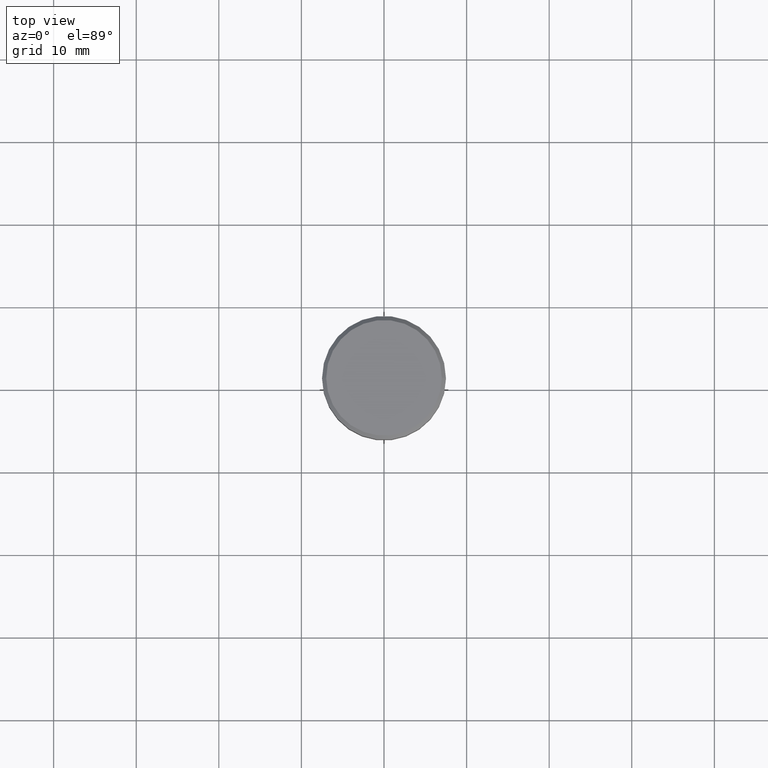
[diagram: clean part render]
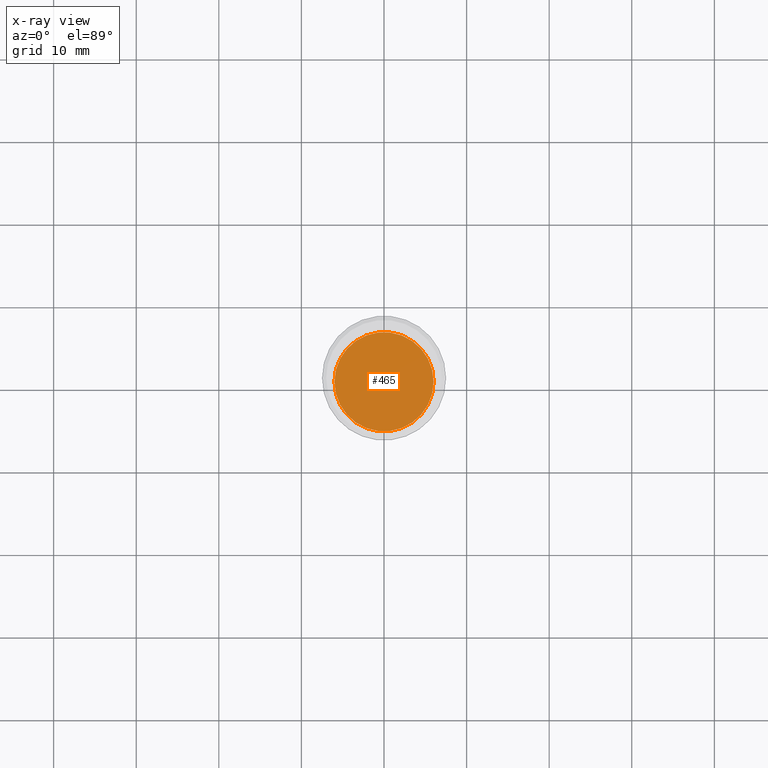
[diagram: x-ray — body ghosted, one internal face saturated and labeled with its STEP entity id]
A machine part, top view, then the same camera in x-ray: the body is ghosted and one INTERNAL B-rep face — a face not visible from any outside direction — is saturated and labeled: STEP entity #465.
In plain terms, the highlighted planar face has unit normal (0, 0, -1).
Its self-contained STEP definition (entity closure, byte-faithful):
#39 = DIRECTION ( 'NONE',  ( -0.000000000000000000, -0.000000000000000000, 1.000000000000000000 ) ) ;
#178 = CARTESIAN_POINT ( 'NONE',  ( -6.000000000000000888, 7.347880794884120722E-16, -28.00000000000000000 ) ) ;
#215 = DIRECTION ( 'NONE',  ( -0.000000000000000000, -0.000000000000000000, 1.000000000000000000 ) ) ;
#299 = EDGE_CURVE ( 'NONE', #717, #793, #770, .T. ) ;
#356 = EDGE_CURVE ( 'NONE', #793, #717, #732, .T. ) ;
#362 = DIRECTION ( 'NONE',  ( 1.000000000000000000, 0.000000000000000000, 0.000000000000000000 ) ) ;
#465 = ADVANCED_FACE ( 'NONE', ( #1045 ), #507, .F. ) ;
#471 = CARTESIAN_POINT ( 'NONE',  ( 6.000000000000000888, 0.000000000000000000, -28.00000000000000000 ) ) ;
#507 = PLANE ( 'NONE',  #581 ) ;
#532 = ORIENTED_EDGE ( 'NONE', *, *, #356, .T. ) ;
#568 = CARTESIAN_POINT ( 'NONE',  ( 0.000000000000000000, 0.000000000000000000, -28.00000000000000000 ) ) ;
#581 = AXIS2_PLACEMENT_3D ( 'NONE', #943, #858, #1115 ) ;
#717 = VERTEX_POINT ( 'NONE', #471 ) ;
#732 = CIRCLE ( 'NONE', #1008, 6.000000000000000888 ) ;
#770 = CIRCLE ( 'NONE', #1144, 6.000000000000000888 ) ;
#793 = VERTEX_POINT ( 'NONE', #178 ) ;
#858 = DIRECTION ( 'NONE',  ( 0.000000000000000000, 0.000000000000000000, -1.000000000000000000 ) ) ;
#890 = EDGE_LOOP ( 'NONE', ( #1042, #532 ) ) ;
#926 = DIRECTION ( 'NONE',  ( 1.000000000000000000, 0.000000000000000000, 0.000000000000000000 ) ) ;
#943 = CARTESIAN_POINT ( 'NONE',  ( 0.000000000000000000, 0.000000000000000000, -28.00000000000000000 ) ) ;
#1008 = AXIS2_PLACEMENT_3D ( 'NONE', #568, #39, #362 ) ;
#1016 = CARTESIAN_POINT ( 'NONE',  ( 0.000000000000000000, 0.000000000000000000, -28.00000000000000000 ) ) ;
#1042 = ORIENTED_EDGE ( 'NONE', *, *, #299, .T. ) ;
#1045 = FACE_OUTER_BOUND ( 'NONE', #890, .T. ) ;
#1115 = DIRECTION ( 'NONE',  ( -1.000000000000000000, 0.000000000000000000, -0.000000000000000000 ) ) ;
#1144 = AXIS2_PLACEMENT_3D ( 'NONE', #1016, #215, #926 ) ;